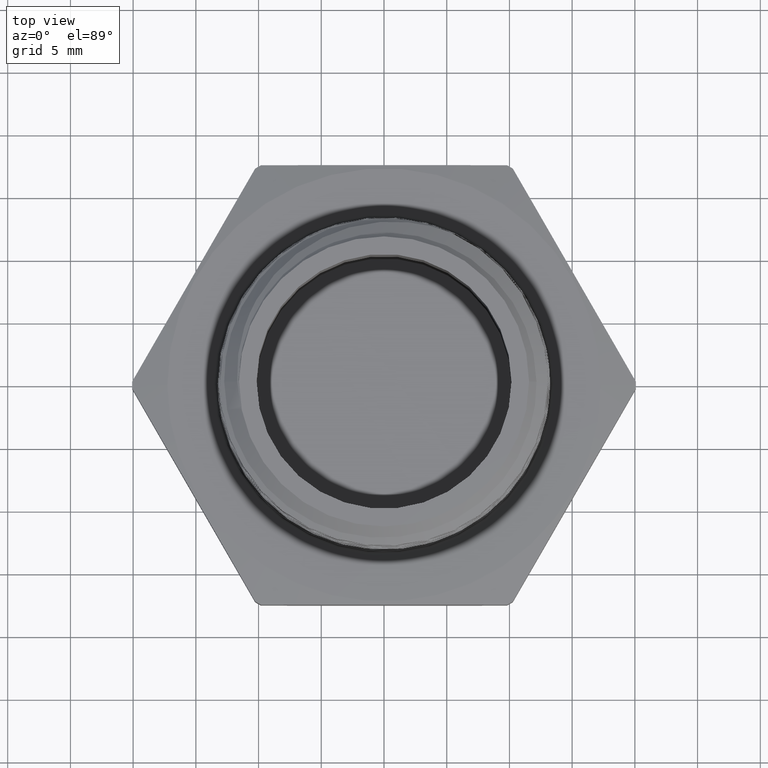
[diagram: clean part render]
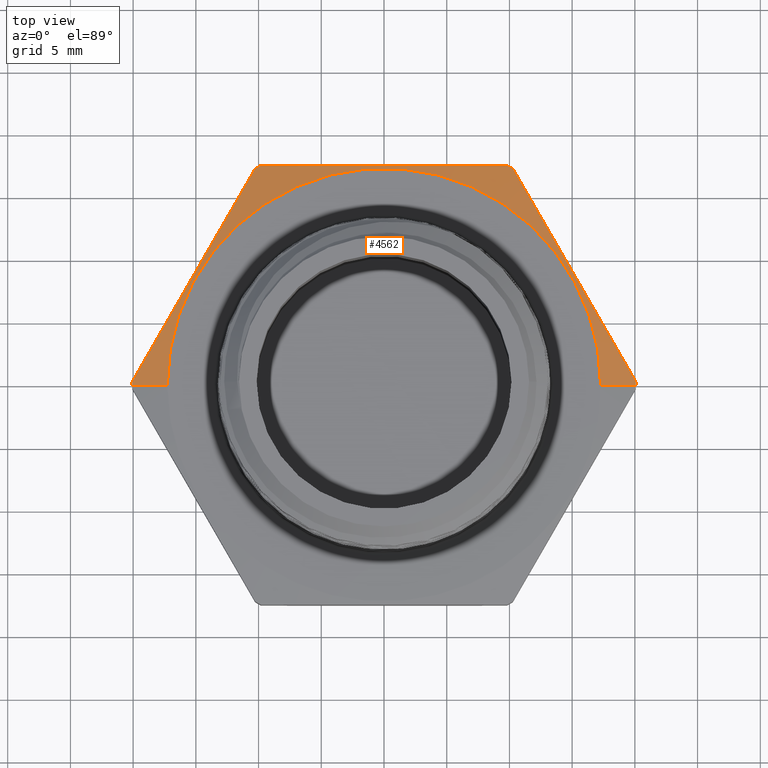
[diagram: same view with one face highlighted and labeled with its STEP entity id]
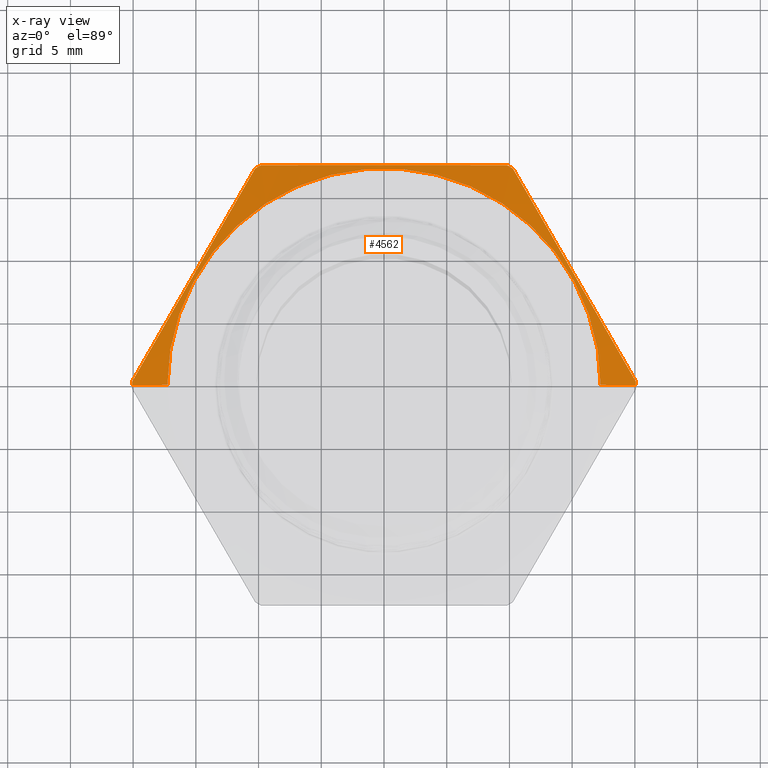
[diagram: x-ray of the same camera — body ghosted, the highlighted face saturated]
A machine part, top view. The second image highlights one B-rep face of the part: STEP entity #4562.
The next image is the same camera in x-ray: the body ghosted, the highlighted face saturated — about 0% of this face is hidden behind the body in this view.
In plain terms, the highlighted conical surface has half-angle 78 deg.
Its self-contained STEP definition (entity closure, byte-faithful):
#2 = DIRECTION ( 'NONE',  ( -1.224646799147351200E-016, -0.0000000000000000000, -1.000000000000000000 ) ) ;
#3 = DIRECTION ( 'NONE',  ( -1.000000000000000000, 0.0000000000000000000, 1.004355880023626300E-016 ) ) ;
#4 = CARTESIAN_POINT ( 'NONE',  ( 0.6799999999999999400, 8.327598234202001900E-017, 0.1899999999999998600 ) ) ;
#5 = DIRECTION ( 'NONE',  ( 0.9781476007338069100, 1.197885328332319900E-016, -0.2079116908177532600 ) ) ;
#6 = CARTESIAN_POINT ( 'NONE',  ( 0.4044415792814493600, 0.6794866359911330100, 0.1664607697301080400 ) ) ;
#7 = CARTESIAN_POINT ( 'NONE',  ( 0.4688135623913871600, 0.5679910906607552600, 0.1785507198903873400 ) ) ;
#8 = CARTESIAN_POINT ( 'NONE',  ( 0.4366275708364184500, 0.6237388633259445300, 0.1731439624358381300 ) ) ;
#9 = CARTESIAN_POINT ( 'NONE',  ( 2.038556488335811200E-017, 0.0000000000000000000, 0.1664607697301080700 ) ) ;
#10 = DIRECTION ( 'NONE',  ( -1.224646799147351200E-016, -0.0000000000000000000, -1.000000000000000000 ) ) ;
#11 = DIRECTION ( 'NONE',  ( -1.000000000000000000, 0.0000000000000000000, 1.295544211397577000E-016 ) ) ;
#12 = CARTESIAN_POINT ( 'NONE',  ( 0.5331855455013248000, 0.4564955453303777300, 0.1859262670952155100 ) ) ;
#13 = CARTESIAN_POINT ( 'NONE',  ( 0.5975575286112625500, 0.3450000000000002000, 0.1898226016713839300 ) ) ;
#14 = CARTESIAN_POINT ( 'NONE',  ( 0.6619295117212005100, 0.2335044546696225500, 0.1859262670952154800 ) ) ;
#15 = CARTESIAN_POINT ( 'NONE',  ( 0.7263014948311380400, 0.1220089093392448300, 0.1785507198903873400 ) ) ;
#16 = CARTESIAN_POINT ( 'NONE',  ( 0.7584874863861066400, 0.06626113667405599000, 0.1731439624358381000 ) ) ;
#17 = CARTESIAN_POINT ( 'NONE',  ( 0.7906734779410755600, 0.01051336400886722900, 0.1664607697301079500 ) ) ;
#18 = CARTESIAN_POINT ( 'NONE',  ( -0.3219022492360751300, 0.6900000000000000600, 0.1731395672910811500 ) ) ;
#19 = CARTESIAN_POINT ( 'NONE',  ( -0.2573352420775981100, 0.6900000000000000600, 0.1785638466571093100 ) ) ;
#20 = CARTESIAN_POINT ( 'NONE',  ( 2.038556488335811200E-017, 0.0000000000000000000, 0.1664607697301080700 ) ) ;
#21 = DIRECTION ( 'NONE',  ( -1.224646799147351200E-016, -0.0000000000000000000, -1.000000000000000000 ) ) ;
#22 = DIRECTION ( 'NONE',  ( -1.000000000000000000, 0.0000000000000000000, 1.295544211397577000E-016 ) ) ;
#23 = CARTESIAN_POINT ( 'NONE',  ( -0.3862318986596255900, 0.6900000000000000600, 0.1664607697301080900 ) ) ;
#24 = CARTESIAN_POINT ( 'NONE',  ( -0.1284019101189666800, 0.6900000000000000600, 0.1859414667693199400 ) ) ;
#25 = CARTESIAN_POINT ( 'NONE',  ( -0.06397446929264297100, 0.6900000000000000600, 0.1878825250044358900 ) ) ;
#26 = CARTESIAN_POINT ( 'NONE',  ( 0.06479292090618143900, 0.6900000000000001700, 0.1878662921738401000 ) ) ;
#27 = CARTESIAN_POINT ( 'NONE',  ( 0.1291328836554240000, 0.6900000000000000600, 0.1859095971344932600 ) ) ;
#28 = CARTESIAN_POINT ( 'NONE',  ( 0.2577350371236339400, 0.6900000000000001700, 0.1785309252871336300 ) ) ;
#29 = CARTESIAN_POINT ( 'NONE',  ( 0.3219976926355422300, 0.6900000000000000600, 0.1731296582188371100 ) ) ;
#30 = CARTESIAN_POINT ( 'NONE',  ( 0.3862318986596255900, 0.6900000000000000600, 0.1664607697301080400 ) ) ;
#31 = CARTESIAN_POINT ( 'NONE',  ( -0.7584874863861066400, 0.06626113667405615600, 0.1731439624358383500 ) ) ;
#32 = CARTESIAN_POINT ( 'NONE',  ( -0.7263014948311378200, 0.1220089093392449800, 0.1785507198903874800 ) ) ;
#33 = CARTESIAN_POINT ( 'NONE',  ( 2.038556488335811200E-017, 0.0000000000000000000, 0.1664607697301080700 ) ) ;
#34 = DIRECTION ( 'NONE',  ( -1.224646799147351200E-016, -0.0000000000000000000, -1.000000000000000000 ) ) ;
#35 = DIRECTION ( 'NONE',  ( -1.000000000000000000, 0.0000000000000000000, 1.295544211397577000E-016 ) ) ;
#36 = CARTESIAN_POINT ( 'NONE',  ( -0.7906734779410755600, 0.01051336400886743400, 0.1664607697301081800 ) ) ;
#945 = CARTESIAN_POINT ( 'NONE',  ( -0.6619295117212000700, 0.2335044546696225000, 0.1859262670952156500 ) ) ;
#946 = CARTESIAN_POINT ( 'NONE',  ( -0.5975575286112625500, 0.3450000000000003100, 0.1898226016713840400 ) ) ;
#947 = CARTESIAN_POINT ( 'NONE',  ( -0.5331855455013250200, 0.4564955453303776700, 0.1859262670952156500 ) ) ;
#948 = CARTESIAN_POINT ( 'NONE',  ( -0.4688135623913873300, 0.5679910906607550400, 0.1785507198903874300 ) ) ;
#949 = CARTESIAN_POINT ( 'NONE',  ( -0.4366275708364186200, 0.6237388633259440800, 0.1731439624358383500 ) ) ;
#950 = CARTESIAN_POINT ( 'NONE',  ( -0.4044415792814497500, 0.6794866359911327900, 0.1664607697301080900 ) ) ;
#951 = DIRECTION ( 'NONE',  ( -0.9781476007338069100, 0.0000000000000000000, -0.2079116908177530400 ) ) ;
#952 = CARTESIAN_POINT ( 'NONE',  ( -0.6799999999999999400, 0.0000000000000000000, 0.1899999999999999700 ) ) ;
#953 = CARTESIAN_POINT ( 'NONE',  ( 2.038556488335811200E-017, 0.0000000000000000000, 0.1664607697301080700 ) ) ;
#954 = DIRECTION ( 'NONE',  ( -1.224646799147351200E-016, -0.0000000000000000000, -1.000000000000000000 ) ) ;
#955 = DIRECTION ( 'NONE',  ( -1.000000000000000000, 0.0000000000000000000, 1.295544211397577000E-016 ) ) ;
#2791 = CARTESIAN_POINT ( 'NONE',  ( -0.6799999999999998300, 0.0000000000000000000, 0.1899999999999999700 ) ) ;
#2828 = CARTESIAN_POINT ( 'NONE',  ( 0.6800000000000001600, 8.327598234202003100E-017, 0.1899999999999998600 ) ) ;
#2833 = CARTESIAN_POINT ( 'NONE',  ( 0.4044415792814493600, 0.6794866359911330100, 0.1664607697301080400 ) ) ;
#2835 = CARTESIAN_POINT ( 'NONE',  ( -0.3862318986596255900, 0.6900000000000000600, 0.1664607697301080900 ) ) ;
#2837 = CARTESIAN_POINT ( 'NONE',  ( 0.3862318986596255900, 0.6900000000000000600, 0.1664607697301080400 ) ) ;
#2838 = CARTESIAN_POINT ( 'NONE',  ( 0.7906734779410755600, 0.01051336400886722900, 0.1664607697301079500 ) ) ;
#2839 = CARTESIAN_POINT ( 'NONE',  ( 0.7907433714816832800, 9.683813388320298700E-017, 0.1664607697301079500 ) ) ;
#2840 = CARTESIAN_POINT ( 'NONE',  ( -0.4044415792814497500, 0.6794866359911327900, 0.1664607697301080900 ) ) ;
#2841 = CARTESIAN_POINT ( 'NONE',  ( -0.7906734779410755600, 0.01051336400886743400, 0.1664607697301081800 ) ) ;
#2842 = CARTESIAN_POINT ( 'NONE',  ( -0.7907433714816832800, 0.0000000000000000000, 0.1664607697301081800 ) ) ;
#3057 = FACE_OUTER_BOUND ( 'NONE', #4237, .T. ) ;
#3084 = CONICAL_SURFACE ( 'NONE', #3713, 0.6799999999999999400, 1.361356816555583400 ) ;
#3502 = EDGE_CURVE ( 'NONE', #4262, #4278, #4033, .T. ) ;
#3503 = EDGE_CURVE ( 'NONE', #4278, #4289, #4035, .T. ) ;
#3504 = EDGE_CURVE ( 'NONE', #4288, #4289, #4038, .T. ) ;
#3505 = EDGE_CURVE ( 'NONE', #4283, #4288, #5027, .T. ) ;
#3506 = EDGE_CURVE ( 'NONE', #4287, #4283, #4037, .T. ) ;
#3507 = EDGE_CURVE ( 'NONE', #4285, #4287, #5030, .T. ) ;
#3508 = EDGE_CURVE ( 'NONE', #4290, #4285, #4040, .T. ) ;
#3509 = EDGE_CURVE ( 'NONE', #4291, #4290, #5031, .T. ) ;
#3510 = EDGE_CURVE ( 'NONE', #4292, #4291, #4042, .T. ) ;
#3511 = EDGE_CURVE ( 'NONE', #4262, #4292, #4043, .T. ) ;
#3622 = AXIS2_PLACEMENT_3D ( 'NONE', #4983, #2, #3 ) ;
#3623 = AXIS2_PLACEMENT_3D ( 'NONE', #9, #10, #11 ) ;
#3624 = AXIS2_PLACEMENT_3D ( 'NONE', #20, #21, #22 ) ;
#3625 = AXIS2_PLACEMENT_3D ( 'NONE', #33, #34, #35 ) ;
#3626 = AXIS2_PLACEMENT_3D ( 'NONE', #953, #954, #955 ) ;
#3713 = AXIS2_PLACEMENT_3D ( 'NONE', #5336, #5337, #5335 ) ;
#4033 = CIRCLE ( 'NONE', #3622, 0.6799999999999999400 ) ;
#4035 = LINE ( 'NONE', #4, #4039 ) ;
#4037 = CIRCLE ( 'NONE', #3624, 0.7907433714816832800 ) ;
#4038 = CIRCLE ( 'NONE', #3623, 0.7907433714816832800 ) ;
#4039 = VECTOR ( 'NONE', #5, 39.37007874015748100 ) ;
#4040 = CIRCLE ( 'NONE', #3625, 0.7907433714816832800 ) ;
#4042 = CIRCLE ( 'NONE', #3626, 0.7907433714816832800 ) ;
#4043 = LINE ( 'NONE', #952, #4045 ) ;
#4045 = VECTOR ( 'NONE', #951, 39.37007874015748900 ) ;
#4237 = EDGE_LOOP ( 'NONE', ( #5024, #5021, #5016, #5017, #4997, #5001, #4999, #5012, #5010, #5002 ) ) ;
#4262 = VERTEX_POINT ( 'NONE', #2791 ) ;
#4278 = VERTEX_POINT ( 'NONE', #2828 ) ;
#4283 = VERTEX_POINT ( 'NONE', #2833 ) ;
#4285 = VERTEX_POINT ( 'NONE', #2835 ) ;
#4287 = VERTEX_POINT ( 'NONE', #2837 ) ;
#4288 = VERTEX_POINT ( 'NONE', #2838 ) ;
#4289 = VERTEX_POINT ( 'NONE', #2839 ) ;
#4290 = VERTEX_POINT ( 'NONE', #2840 ) ;
#4291 = VERTEX_POINT ( 'NONE', #2841 ) ;
#4292 = VERTEX_POINT ( 'NONE', #2842 ) ;
#4562 = ADVANCED_FACE ( 'NONE', ( #3057 ), #3084, .T. ) ;
#4983 = CARTESIAN_POINT ( 'NONE',  ( 2.326828918379966200E-017, 0.0000000000000000000, 0.1899999999999999200 ) ) ;
#4997 = ORIENTED_EDGE ( 'NONE', *, *, #3506, .F. ) ;
#4999 = ORIENTED_EDGE ( 'NONE', *, *, #3508, .F. ) ;
#5001 = ORIENTED_EDGE ( 'NONE', *, *, #3507, .F. ) ;
#5002 = ORIENTED_EDGE ( 'NONE', *, *, #3511, .F. ) ;
#5010 = ORIENTED_EDGE ( 'NONE', *, *, #3510, .F. ) ;
#5012 = ORIENTED_EDGE ( 'NONE', *, *, #3509, .F. ) ;
#5016 = ORIENTED_EDGE ( 'NONE', *, *, #3504, .F. ) ;
#5017 = ORIENTED_EDGE ( 'NONE', *, *, #3505, .F. ) ;
#5021 = ORIENTED_EDGE ( 'NONE', *, *, #3503, .T. ) ;
#5024 = ORIENTED_EDGE ( 'NONE', *, *, #3502, .T. ) ;
#5027 = B_SPLINE_CURVE_WITH_KNOTS ( 'NONE', 3,
 ( #6, #8, #7, #12, #13, #14, #15, #16, #17 ),
 .UNSPECIFIED., .F., .F.,
 ( 4, 2, 1, 2, 4 ),
 ( 1.926240183753945300E-006, 0.004907071353161008900, 0.009812216466138263700, 0.01471736157911551100, 0.01962250669209275600 ),
 .UNSPECIFIED. ) ;
#5030 = B_SPLINE_CURVE_WITH_KNOTS ( 'NONE', 3,
 ( #23, #18, #19, #24, #25, #26, #27, #28, #29, #30 ),
 .UNSPECIFIED., .F., .F.,
 ( 4, 2, 2, 2, 4 ),
 ( 0.01710250792668073900, 0.02202713821879603900, 0.02695176851091133500, 0.03187639880302663200, 0.03680102909514193500 ),
 .UNSPECIFIED. ) ;
#5031 = B_SPLINE_CURVE_WITH_KNOTS ( 'NONE', 3,
 ( #36, #31, #32, #945, #946, #947, #948, #949, #950 ),
 .UNSPECIFIED., .F., .F.,
 ( 4, 2, 1, 2, 4 ),
 ( 1.926240183804209600E-006, 0.004907071353161048000, 0.009812216466138295000, 0.01471736157911554000, 0.01962250669209278700 ),
 .UNSPECIFIED. ) ;
#5335 = DIRECTION ( 'NONE',  ( -1.000000000000000000, 0.0000000000000000000, 1.004355880023626300E-016 ) ) ;
#5336 = CARTESIAN_POINT ( 'NONE',  ( 2.326828918379966200E-017, 0.0000000000000000000, 0.1899999999999999200 ) ) ;
#5337 = DIRECTION ( 'NONE',  ( -1.224646799147351200E-016, -0.0000000000000000000, -1.000000000000000000 ) ) ;